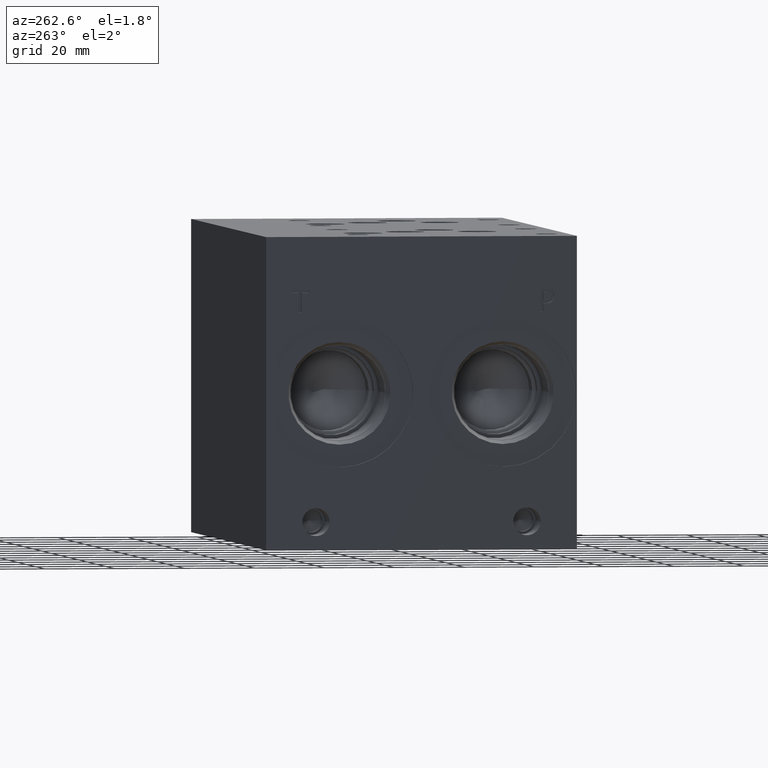
[diagram: clean part render]
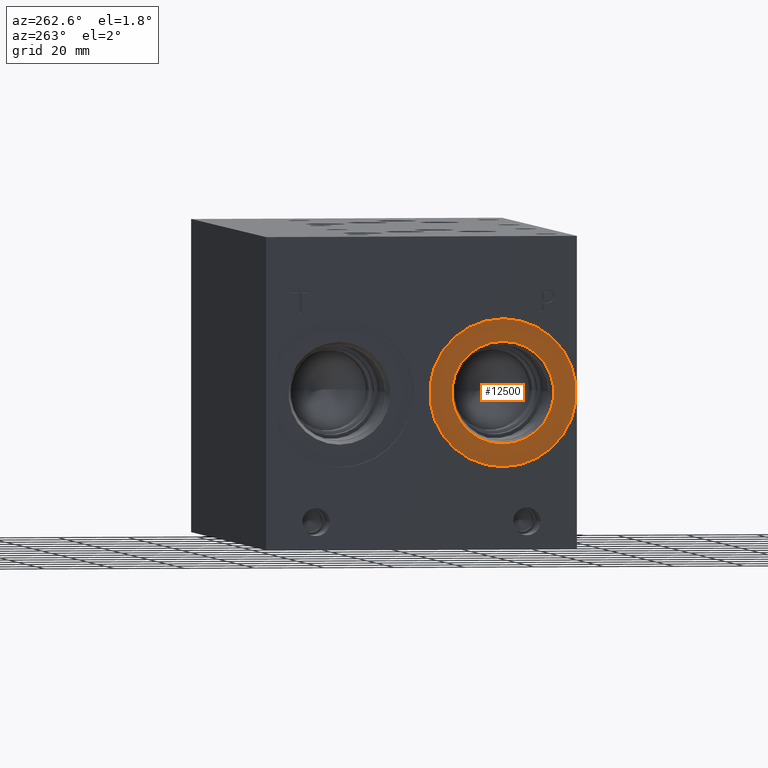
[diagram: same view with one face highlighted and labeled with its STEP entity id]
A machine part, auxiliary view. The second image highlights one B-rep face of the part: STEP entity #12500.
In plain terms, the highlighted planar face has unit normal (1, 0, 0).
Its self-contained STEP definition (entity closure, byte-faithful):
#274=CIRCLE('',#13126,21.0185);
#275=CIRCLE('',#13127,21.0185);
#276=CIRCLE('',#13129,14.5923);
#277=CIRCLE('',#13130,14.5923);
#508=FACE_BOUND('',#2162,.T.);
#870=PLANE('',#13128);
#1441=FACE_OUTER_BOUND('',#2161,.T.);
#2161=EDGE_LOOP('',(#10794,#10795));
#2162=EDGE_LOOP('',(#10796,#10797));
#5896=VERTEX_POINT('',#21285);
#5897=VERTEX_POINT('',#21287);
#5898=VERTEX_POINT('',#21291);
#5899=VERTEX_POINT('',#21292);
#7582=EDGE_CURVE('',#5896,#5897,#274,.T.);
#7583=EDGE_CURVE('',#5897,#5896,#275,.T.);
#7584=EDGE_CURVE('',#5898,#5899,#276,.T.);
#7585=EDGE_CURVE('',#5899,#5898,#277,.T.);
#10794=ORIENTED_EDGE('',*,*,#7583,.F.);
#10795=ORIENTED_EDGE('',*,*,#7582,.F.);
#10796=ORIENTED_EDGE('',*,*,#7584,.T.);
#10797=ORIENTED_EDGE('',*,*,#7585,.T.);
#12500=ADVANCED_FACE('',(#1441,#508),#870,.F.);
#13126=AXIS2_PLACEMENT_3D('',#21288,#15459,#15460);
#13127=AXIS2_PLACEMENT_3D('',#21289,#15461,#15462);
#13128=AXIS2_PLACEMENT_3D('',#21290,#15463,#15464);
#13129=AXIS2_PLACEMENT_3D('',#21293,#15465,#15466);
#13130=AXIS2_PLACEMENT_3D('',#21294,#15467,#15468);
#15459=DIRECTION('center_axis',(1.,0.,0.));
#15460=DIRECTION('ref_axis',(0.,0.,-1.));
#15461=DIRECTION('center_axis',(1.,0.,0.));
#15462=DIRECTION('ref_axis',(0.,0.,-1.));
#15463=DIRECTION('center_axis',(1.,0.,0.));
#15464=DIRECTION('ref_axis',(0.,0.,-1.));
#15465=DIRECTION('center_axis',(1.,0.,0.));
#15466=DIRECTION('ref_axis',(0.,0.,-1.));
#15467=DIRECTION('center_axis',(1.,0.,0.));
#15468=DIRECTION('ref_axis',(0.,0.,-1.));
#21285=CARTESIAN_POINT('',(0.7874,21.082,23.4315));
#21287=CARTESIAN_POINT('',(0.7874,21.082,65.4685));
#21288=CARTESIAN_POINT('Origin',(0.7874,21.082,44.45));
#21289=CARTESIAN_POINT('Origin',(0.7874,21.082,44.45));
#21290=CARTESIAN_POINT('Origin',(0.7874,21.082,59.0423));
#21291=CARTESIAN_POINT('',(0.7874,21.082,59.0423));
#21292=CARTESIAN_POINT('',(0.787399999999999,21.082,29.8577));
#21293=CARTESIAN_POINT('Origin',(0.7874,21.082,44.45));
#21294=CARTESIAN_POINT('Origin',(0.7874,21.082,44.45));